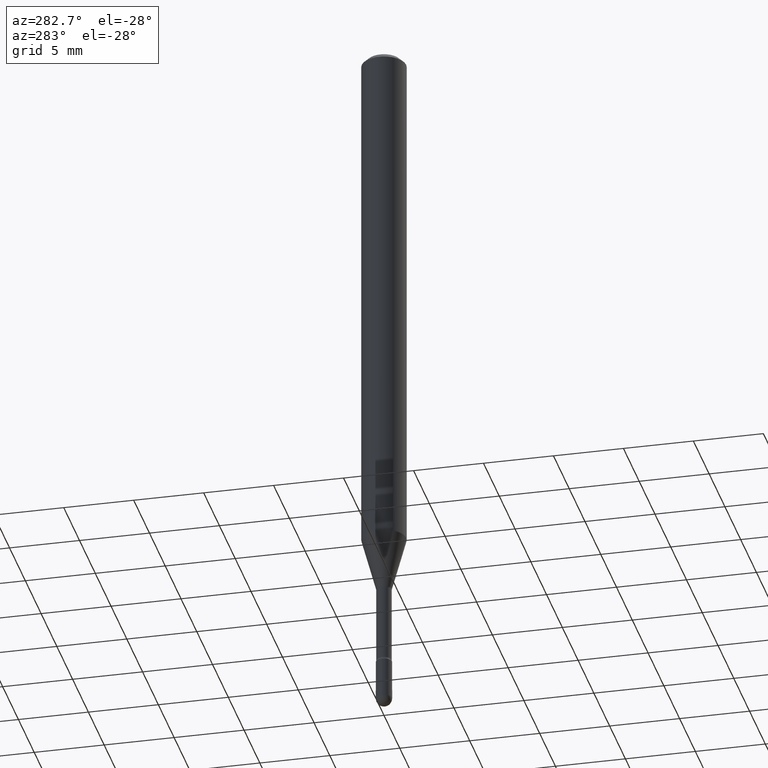
[diagram: clean part render]
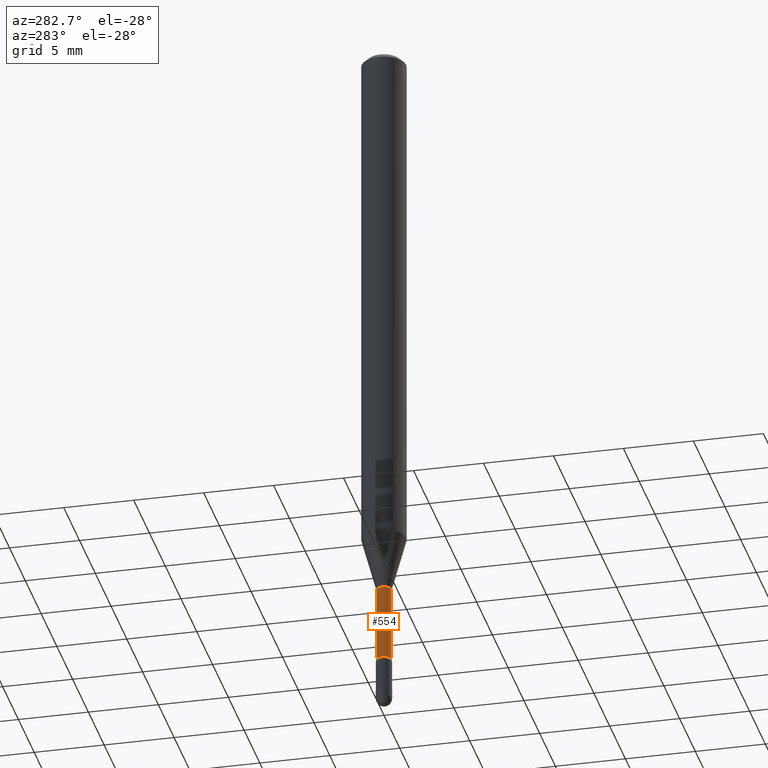
[diagram: same view with one face highlighted and labeled with its STEP entity id]
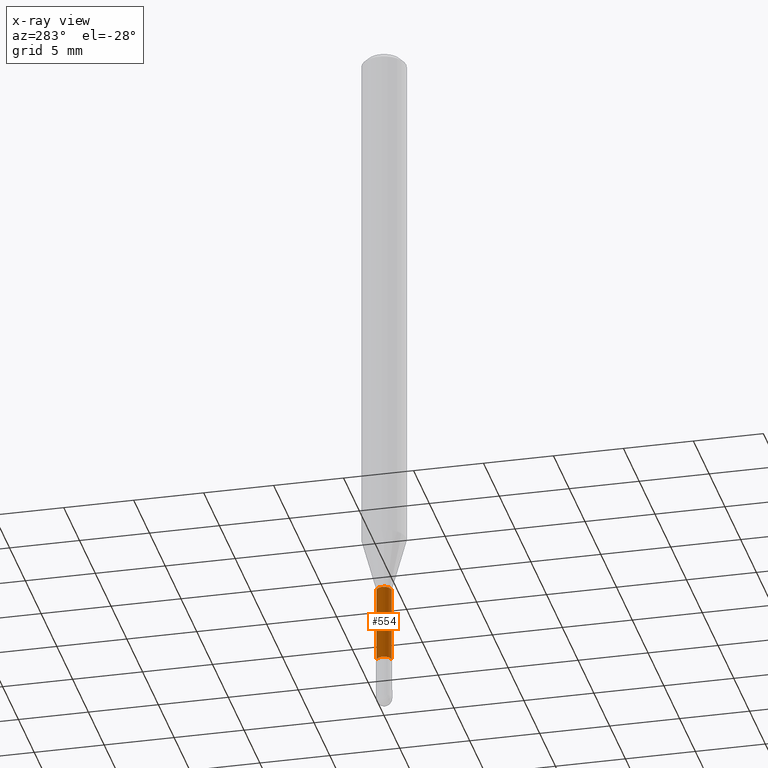
[diagram: x-ray of the same camera — body ghosted, the highlighted face saturated]
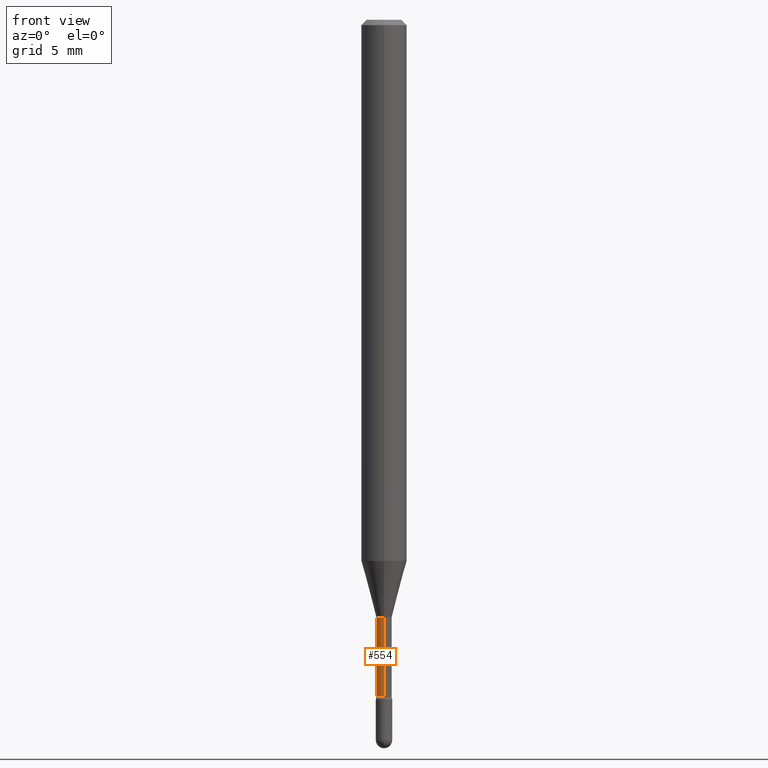
[diagram: same view with one face highlighted and labeled with its STEP entity id]
A machine part, auxiliary view. The second image highlights one B-rep face of the part: STEP entity #554.
The next image is the same camera in x-ray: the body ghosted, the highlighted face saturated — about 0% of this face is hidden behind the body in this view.
A second angle (front view) of the same face is appended — the face is thin or edge-on in the first view.
In plain terms, the highlighted cylindrical surface (edge-blend (fillet) strip) has radius 0.5372 mm, axis along (-0, 0, 1).
Its self-contained STEP definition (entity closure, byte-faithful):
#2 = ORIENTED_EDGE ( 'NONE', *, *, #490, .T. ) ;
#12 = ORIENTED_EDGE ( 'NONE', *, *, #560, .T. ) ;
#17 = VECTOR ( 'NONE', #477, 39.37007874015748143 ) ;
#26 = AXIS2_PLACEMENT_3D ( 'NONE', #416, #73, #556 ) ;
#37 = CIRCLE ( 'NONE', #243, 0.02115000000000004723 ) ;
#48 = VERTEX_POINT ( 'NONE', #411 ) ;
#73 = DIRECTION ( 'NONE',  ( -2.445416930396453536E-29, 3.491555627925126489E-15, 1.000000000000000000 ) ) ;
#94 = VERTEX_POINT ( 'NONE', #389 ) ;
#113 = CARTESIAN_POINT ( 'NONE',  ( 4.545494224721728426E-29, -6.490036829611427454E-15, -1.858780876267511539 ) ) ;
#117 = LINE ( 'NONE', #299, #17 ) ;
#125 = DIRECTION ( 'NONE',  ( -2.445416930396453536E-29, 3.491555627925126489E-15, 1.000000000000000000 ) ) ;
#131 = AXIS2_PLACEMENT_3D ( 'NONE', #562, #125, #479 ) ;
#142 = CARTESIAN_POINT ( 'NONE',  ( -1.476896606330193891E-16, -0.02115000000000653510, -1.858780876267511539 ) ) ;
#143 = VERTEX_POINT ( 'NONE', #485 ) ;
#201 = ORIENTED_EDGE ( 'NONE', *, *, #396, .F. ) ;
#243 = AXIS2_PLACEMENT_3D ( 'NONE', #113, #295, #520 ) ;
#263 = ORIENTED_EDGE ( 'NONE', *, *, #422, .F. ) ;
#269 = CIRCLE ( 'NONE', #26, 0.02114999999999999866 ) ;
#290 = DIRECTION ( 'NONE',  ( -2.445416930396453536E-29, 3.491555627925126489E-15, 1.000000000000000000 ) ) ;
#295 = DIRECTION ( 'NONE',  ( -2.445416930396453536E-29, 3.491555627925126489E-15, 1.000000000000000000 ) ) ;
#299 = CARTESIAN_POINT ( 'NONE',  ( -1.476896606330647239E-16, -0.02115000000000002642, 5.519198004218626365E-16 ) ) ;
#311 = EDGE_LOOP ( 'NONE', ( #201, #2, #12, #263 ) ) ;
#315 = VERTEX_POINT ( 'NONE', #142 ) ;
#380 = CYLINDRICAL_SURFACE ( 'NONE', #131, 0.02115000000000002642 ) ;
#389 = CARTESIAN_POINT ( 'NONE',  ( 1.502797886133067119E-16, 0.02114999999999426714, -1.641974787463811092 ) ) ;
#396 = EDGE_CURVE ( 'NONE', #143, #94, #519, .T. ) ;
#411 = CARTESIAN_POINT ( 'NONE',  ( -1.476896606330243688E-16, -0.02115000000000573366, -1.641974787463811092 ) ) ;
#416 = CARTESIAN_POINT ( 'NONE',  ( 4.015312944548121330E-29, -5.733046310080431684E-15, -1.641974787463811092 ) ) ;
#422 = EDGE_CURVE ( 'NONE', #94, #48, #269, .T. ) ;
#428 = VECTOR ( 'NONE', #290, 39.37007874015748143 ) ;
#435 = FACE_OUTER_BOUND ( 'NONE', #311, .T. ) ;
#477 = DIRECTION ( 'NONE',  ( -2.445416930396453536E-29, 3.491555627925126489E-15, 1.000000000000000000 ) ) ;
#479 = DIRECTION ( 'NONE',  ( -6.982962677686266711E-15, -1.000000000000000000, 3.491555627925129250E-15 ) ) ;
#485 = CARTESIAN_POINT ( 'NONE',  ( 1.550759520796875748E-16, 0.02114999999999355937, -1.858780876267511539 ) ) ;
#490 = EDGE_CURVE ( 'NONE', #143, #315, #37, .T. ) ;
#519 = LINE ( 'NONE', #551, #428 ) ;
#520 = DIRECTION ( 'NONE',  ( -6.982962677686266711E-15, -1.000000000000000000, 0.000000000000000000 ) ) ;
#551 = CARTESIAN_POINT ( 'NONE',  ( 1.502797886132613524E-16, 0.02115000000000002642, 4.042269973606295393E-16 ) ) ;
#554 = ADVANCED_FACE ( 'NONE', ( #435 ), #380, .T. ) ;
#556 = DIRECTION ( 'NONE',  ( -6.982962677686266711E-15, -1.000000000000000000, 0.000000000000000000 ) ) ;
#560 = EDGE_CURVE ( 'NONE', #315, #48, #117, .T. ) ;
#562 = CARTESIAN_POINT ( 'NONE',  ( -1.169113584055446105E-44, 1.669184350826100908E-30, 4.780733988912460139E-16 ) ) ;